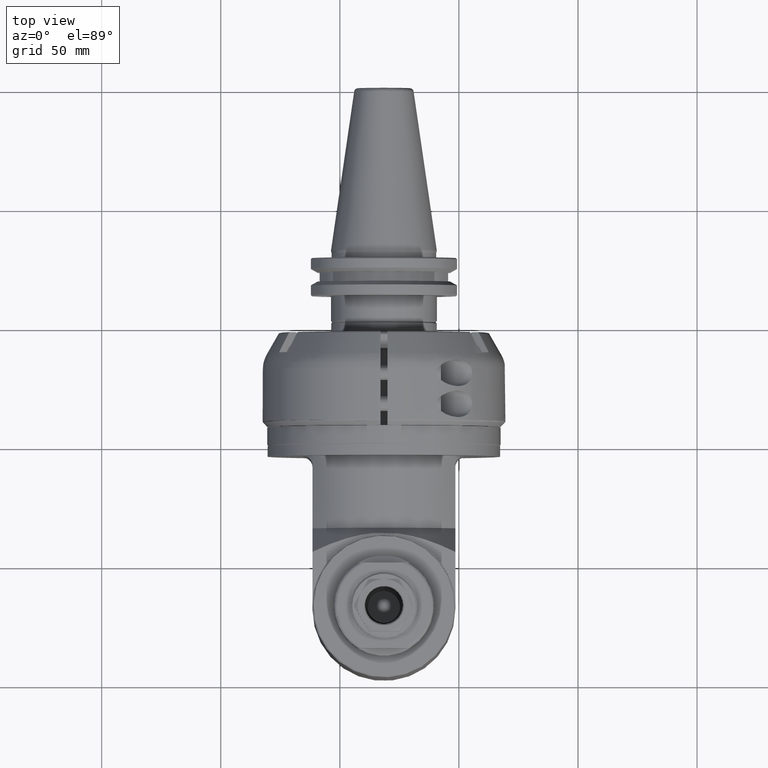
[diagram: clean part render]
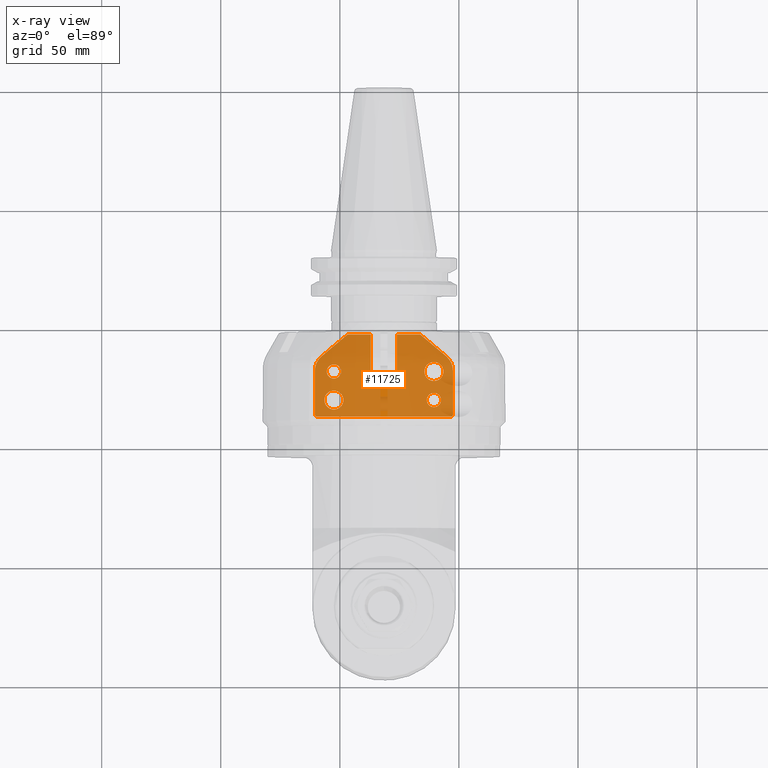
[diagram: x-ray — body ghosted, one internal face saturated and labeled with its STEP entity id]
A machine part, top view, then the same camera in x-ray: the body is ghosted and one INTERNAL B-rep face — a face not visible from any outside direction — is saturated and labeled: STEP entity #11725.
In plain terms, the highlighted planar face has unit normal (0, 0, -1).
Its self-contained STEP definition (entity closure, byte-faithful):
#509=FACE_BOUND('',#2175,.T.);
#510=FACE_BOUND('',#2176,.T.);
#511=FACE_BOUND('',#2177,.T.);
#512=FACE_BOUND('',#2178,.T.);
#849=PLANE('',#12928);
#1380=FACE_OUTER_BOUND('',#2174,.T.);
#2174=EDGE_LOOP('',(#9591,#9592,#9593,#9594,#9595,#9596,#9597,#9598,#9599,
#9600,#9601,#9602,#9603,#9604,#9605,#9606));
#2175=EDGE_LOOP('',(#9607));
#2176=EDGE_LOOP('',(#9608));
#2177=EDGE_LOOP('',(#9609));
#2178=EDGE_LOOP('',(#9610));
#3004=LINE('',#19962,#3779);
#3009=LINE('',#19981,#3784);
#3010=LINE('',#19985,#3785);
#3011=LINE('',#19989,#3786);
#3012=LINE('',#19993,#3787);
#3013=LINE('',#19995,#3788);
#3014=LINE('',#19997,#3789);
#3015=LINE('',#19999,#3790);
#3016=LINE('',#20001,#3791);
#3017=LINE('',#20004,#3792);
#3779=VECTOR('',#15601,13.9783779134199);
#3784=VECTOR('',#15614,56.);
#3785=VECTOR('',#15617,18.26953855035);
#3786=VECTOR('',#15620,13.9783779134199);
#3787=VECTOR('',#15623,9.612848348261);
#3788=VECTOR('',#15624,17.);
#3789=VECTOR('',#15625,11.);
#3790=VECTOR('',#15626,17.);
#3791=VECTOR('',#15627,9.612848348261);
#3792=VECTOR('',#15630,18.26953855035);
#4498=CIRCLE('',#12927,8.);
#4499=CIRCLE('',#12929,1.);
#4500=CIRCLE('',#12930,8.);
#4501=CIRCLE('',#12931,0.5);
#4502=CIRCLE('',#12932,0.5);
#4503=CIRCLE('',#12933,1.);
#4504=CIRCLE('',#12934,4.);
#4505=CIRCLE('',#12935,3.);
#4506=CIRCLE('',#12936,4.);
#4507=CIRCLE('',#12937,3.);
#5465=VERTEX_POINT('',#19958);
#5467=VERTEX_POINT('',#19961);
#5472=VERTEX_POINT('',#19975);
#5473=VERTEX_POINT('',#19979);
#5474=VERTEX_POINT('',#19980);
#5475=VERTEX_POINT('',#19982);
#5476=VERTEX_POINT('',#19984);
#5477=VERTEX_POINT('',#19986);
#5478=VERTEX_POINT('',#19988);
#5479=VERTEX_POINT('',#19990);
#5480=VERTEX_POINT('',#19992);
#5481=VERTEX_POINT('',#19994);
#5482=VERTEX_POINT('',#19996);
#5483=VERTEX_POINT('',#19998);
#5484=VERTEX_POINT('',#20000);
#5485=VERTEX_POINT('',#20003);
#5486=VERTEX_POINT('',#20006);
#5487=VERTEX_POINT('',#20008);
#5488=VERTEX_POINT('',#20010);
#5489=VERTEX_POINT('',#20012);
#6921=EDGE_CURVE('',#5467,#5465,#3004,.T.);
#6928=EDGE_CURVE('',#5465,#5472,#4498,.T.);
#6929=EDGE_CURVE('',#5473,#5474,#3009,.T.);
#6930=EDGE_CURVE('',#5474,#5475,#4499,.T.);
#6931=EDGE_CURVE('',#5475,#5476,#3010,.T.);
#6932=EDGE_CURVE('',#5476,#5477,#4500,.T.);
#6933=EDGE_CURVE('',#5477,#5478,#3011,.T.);
#6934=EDGE_CURVE('',#5478,#5479,#4501,.T.);
#6935=EDGE_CURVE('',#5480,#5479,#3012,.T.);
#6936=EDGE_CURVE('',#5481,#5480,#3013,.T.);
#6937=EDGE_CURVE('',#5482,#5481,#3014,.T.);
#6938=EDGE_CURVE('',#5483,#5482,#3015,.T.);
#6939=EDGE_CURVE('',#5483,#5484,#3016,.T.);
#6940=EDGE_CURVE('',#5484,#5467,#4502,.T.);
#6941=EDGE_CURVE('',#5485,#5472,#3017,.T.);
#6942=EDGE_CURVE('',#5485,#5473,#4503,.T.);
#6943=EDGE_CURVE('',#5486,#5486,#4504,.T.);
#6944=EDGE_CURVE('',#5487,#5487,#4505,.T.);
#6945=EDGE_CURVE('',#5488,#5488,#4506,.T.);
#6946=EDGE_CURVE('',#5489,#5489,#4507,.T.);
#9591=ORIENTED_EDGE('',*,*,#6929,.T.);
#9592=ORIENTED_EDGE('',*,*,#6930,.T.);
#9593=ORIENTED_EDGE('',*,*,#6931,.T.);
#9594=ORIENTED_EDGE('',*,*,#6932,.T.);
#9595=ORIENTED_EDGE('',*,*,#6933,.T.);
#9596=ORIENTED_EDGE('',*,*,#6934,.T.);
#9597=ORIENTED_EDGE('',*,*,#6935,.F.);
#9598=ORIENTED_EDGE('',*,*,#6936,.F.);
#9599=ORIENTED_EDGE('',*,*,#6937,.F.);
#9600=ORIENTED_EDGE('',*,*,#6938,.F.);
#9601=ORIENTED_EDGE('',*,*,#6939,.T.);
#9602=ORIENTED_EDGE('',*,*,#6940,.T.);
#9603=ORIENTED_EDGE('',*,*,#6921,.T.);
#9604=ORIENTED_EDGE('',*,*,#6928,.T.);
#9605=ORIENTED_EDGE('',*,*,#6941,.F.);
#9606=ORIENTED_EDGE('',*,*,#6942,.T.);
#9607=ORIENTED_EDGE('',*,*,#6943,.T.);
#9608=ORIENTED_EDGE('',*,*,#6944,.T.);
#9609=ORIENTED_EDGE('',*,*,#6945,.T.);
#9610=ORIENTED_EDGE('',*,*,#6946,.T.);
#11725=ADVANCED_FACE('',(#1380,#509,#510,#511,#512),#849,.F.);
#12927=AXIS2_PLACEMENT_3D('',#19977,#15610,#15611);
#12928=AXIS2_PLACEMENT_3D('',#19978,#15612,#15613);
#12929=AXIS2_PLACEMENT_3D('',#19983,#15615,#15616);
#12930=AXIS2_PLACEMENT_3D('',#19987,#15618,#15619);
#12931=AXIS2_PLACEMENT_3D('',#19991,#15621,#15622);
#12932=AXIS2_PLACEMENT_3D('',#20002,#15628,#15629);
#12933=AXIS2_PLACEMENT_3D('',#20005,#15631,#15632);
#12934=AXIS2_PLACEMENT_3D('',#20007,#15633,#15634);
#12935=AXIS2_PLACEMENT_3D('',#20009,#15635,#15636);
#12936=AXIS2_PLACEMENT_3D('',#20011,#15637,#15638);
#12937=AXIS2_PLACEMENT_3D('',#20013,#15639,#15640);
#15601=DIRECTION('',(-0.766044443119007,-0.642787609686505,0.));
#15610=DIRECTION('center_axis',(0.,0.,1.));
#15611=DIRECTION('ref_axis',(-0.642787609686613,0.766044443118916,0.));
#15612=DIRECTION('center_axis',(0.,0.,-1.));
#15613=DIRECTION('ref_axis',(1.,0.,0.));
#15614=DIRECTION('',(1.,0.,0.));
#15615=DIRECTION('center_axis',(0.,0.,1.));
#15616=DIRECTION('ref_axis',(0.,-1.,0.));
#15617=DIRECTION('',(0.,1.,0.));
#15618=DIRECTION('center_axis',(0.,0.,1.));
#15619=DIRECTION('ref_axis',(1.,0.,0.));
#15620=DIRECTION('',(-0.766044443119007,0.642787609686505,0.));
#15621=DIRECTION('center_axis',(0.,0.,1.));
#15622=DIRECTION('ref_axis',(0.642787609685309,0.76604444312001,0.));
#15623=DIRECTION('',(1.,0.,0.));
#15624=DIRECTION('',(0.,1.,0.));
#15625=DIRECTION('',(1.,0.,0.));
#15626=DIRECTION('',(0.,-1.,0.));
#15627=DIRECTION('',(-1.,0.,0.));
#15628=DIRECTION('center_axis',(0.,0.,1.));
#15629=DIRECTION('ref_axis',(0.,1.,0.));
#15630=DIRECTION('',(0.,1.,0.));
#15631=DIRECTION('center_axis',(0.,0.,1.));
#15632=DIRECTION('ref_axis',(-1.,0.,0.));
#15633=DIRECTION('center_axis',(0.,0.,-1.));
#15634=DIRECTION('ref_axis',(-1.,0.,0.));
#15635=DIRECTION('center_axis',(0.,0.,-1.));
#15636=DIRECTION('ref_axis',(-1.,0.,0.));
#15637=DIRECTION('center_axis',(0.,0.,-1.));
#15638=DIRECTION('ref_axis',(-1.,0.,0.));
#15639=DIRECTION('center_axis',(0.,0.,-1.));
#15640=DIRECTION('ref_axis',(-1.,0.,0.));
#19958=CARTESIAN_POINT('',(-26.14230087749,30.3978940953,-42.));
#19961=CARTESIAN_POINT('',(-15.4342421531,39.38302222156,-42.));
#19962=CARTESIAN_POINT('',(-15.4342421531,39.38302222156,-42.));
#19975=CARTESIAN_POINT('',(-29.,24.26953855035,-42.));
#19977=CARTESIAN_POINT('Origin',(-21.,24.26953855035,-42.));
#19978=CARTESIAN_POINT('Origin',(20.,31.,-42.));
#19979=CARTESIAN_POINT('',(-28.,5.,-42.));
#19980=CARTESIAN_POINT('',(28.,5.,-42.));
#19981=CARTESIAN_POINT('',(-28.,5.,-42.));
#19982=CARTESIAN_POINT('',(29.,6.,-42.));
#19983=CARTESIAN_POINT('Origin',(28.,6.,-42.));
#19984=CARTESIAN_POINT('',(29.,24.26953855035,-42.));
#19985=CARTESIAN_POINT('',(29.,6.,-42.));
#19986=CARTESIAN_POINT('',(26.14230087749,30.3978940953,-42.));
#19987=CARTESIAN_POINT('Origin',(21.,24.26953855035,-42.));
#19988=CARTESIAN_POINT('',(15.4342421531,39.38302222156,-42.));
#19989=CARTESIAN_POINT('',(26.14230087749,30.3978940953,-42.));
#19990=CARTESIAN_POINT('',(15.11284834826,39.5,-42.));
#19991=CARTESIAN_POINT('Origin',(15.11284834826,39.,-42.));
#19992=CARTESIAN_POINT('',(5.5,39.5,-42.));
#19993=CARTESIAN_POINT('',(5.5,39.5,-42.));
#19994=CARTESIAN_POINT('',(5.5,22.5,-42.));
#19995=CARTESIAN_POINT('',(5.5,22.5,-42.));
#19996=CARTESIAN_POINT('',(-5.5,22.5,-42.));
#19997=CARTESIAN_POINT('',(-5.5,22.5,-42.));
#19998=CARTESIAN_POINT('',(-5.5,39.5,-42.));
#19999=CARTESIAN_POINT('',(-5.5,39.5,-42.));
#20000=CARTESIAN_POINT('',(-15.11284834826,39.5,-42.));
#20001=CARTESIAN_POINT('',(-5.5,39.5,-42.));
#20002=CARTESIAN_POINT('Origin',(-15.11284834826,39.,-42.));
#20003=CARTESIAN_POINT('',(-29.,6.,-42.));
#20004=CARTESIAN_POINT('',(-29.,6.,-42.));
#20005=CARTESIAN_POINT('Origin',(-28.,6.,-42.));
#20006=CARTESIAN_POINT('',(-17.,12.,-42.));
#20007=CARTESIAN_POINT('Origin',(-21.,12.,-42.));
#20008=CARTESIAN_POINT('',(-18.,24.,-42.));
#20009=CARTESIAN_POINT('Origin',(-21.,24.,-42.));
#20010=CARTESIAN_POINT('',(25.,24.,-42.));
#20011=CARTESIAN_POINT('Origin',(21.,24.,-42.));
#20012=CARTESIAN_POINT('',(24.,12.,-42.));
#20013=CARTESIAN_POINT('Origin',(21.,12.,-42.));